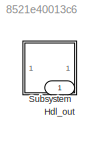
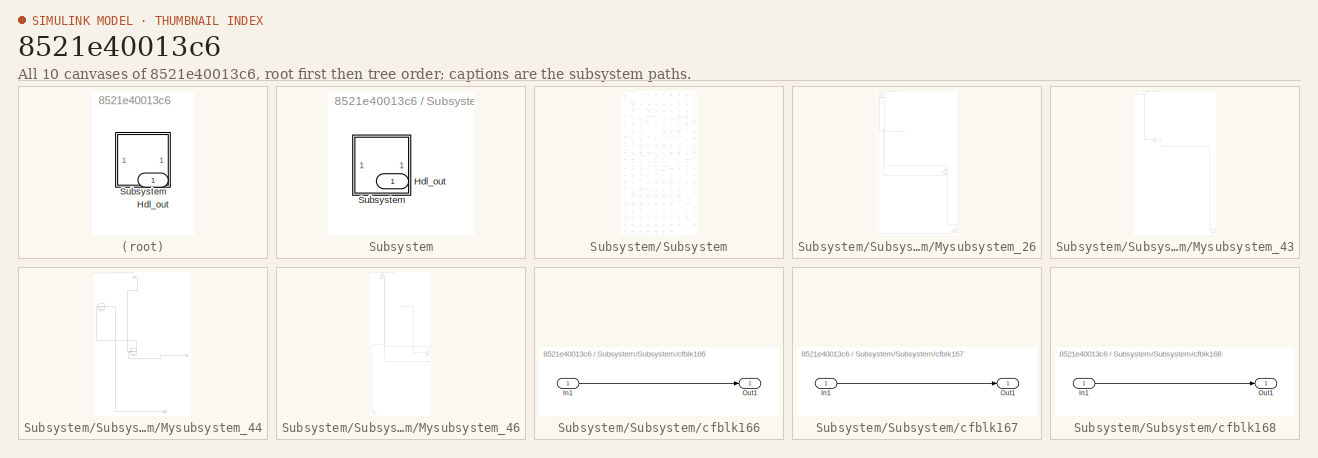
[diagram: thumbnail index - all 10 canvases of the model, root first then tree order]
MODEL slx_8521e40013c6
KIND model
CONFIG AbsTol = auto
CONFIG EnableMultiTasking = off
CONFIG FixedStep = auto
CONFIG MaxStep = auto
CONFIG MinStep = auto
CONFIG RelTol = 1e-3
CONFIG SampleTimeConstraint = Unconstrained
CONFIG SolverName = VariableStepAuto
CONFIG StartTime = 0.0
CONFIG StopTime = 10.0
BLOCK [Outport] Hdl_out
  OutDataTypeStr = uint8
BLOCK [SubSystem] Subsystem
BLOCK [Outport] Subsystem/Hdl_out
  OutDataTypeStr = uint8
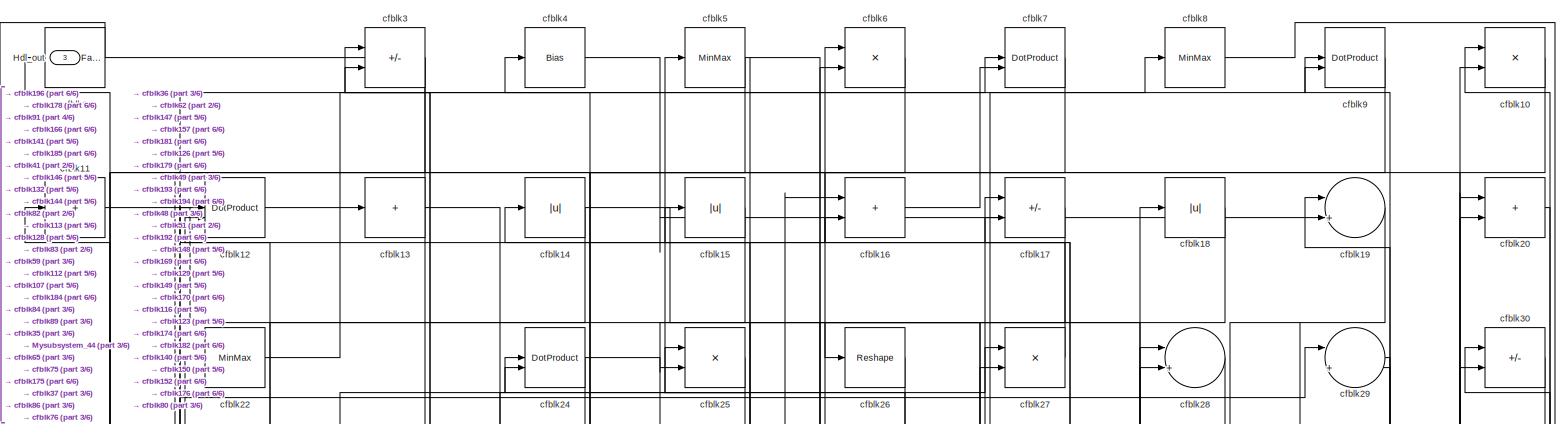
[diagram: Subsystem/Subsystem - part 1/6, full width, top band]
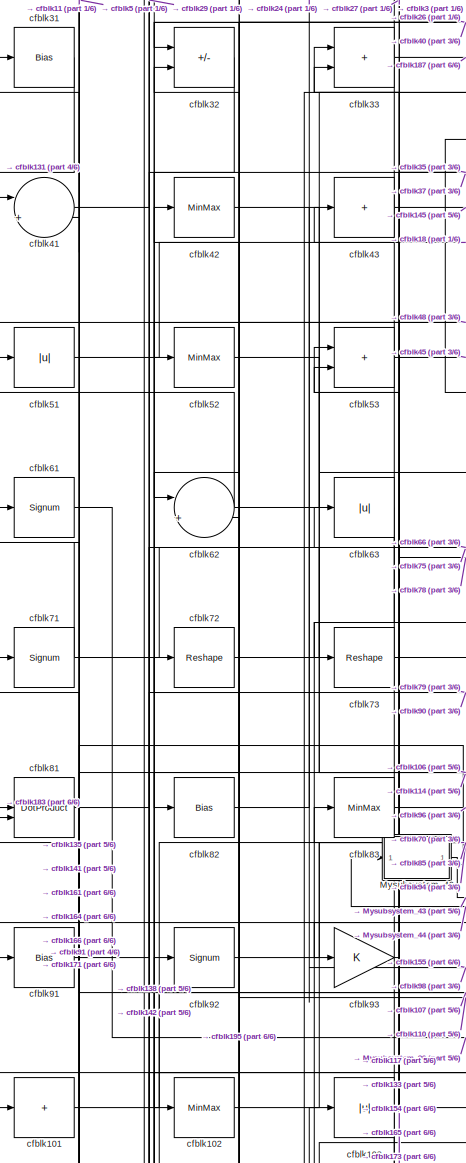
[diagram: Subsystem/Subsystem - part 2/6, middle left region]
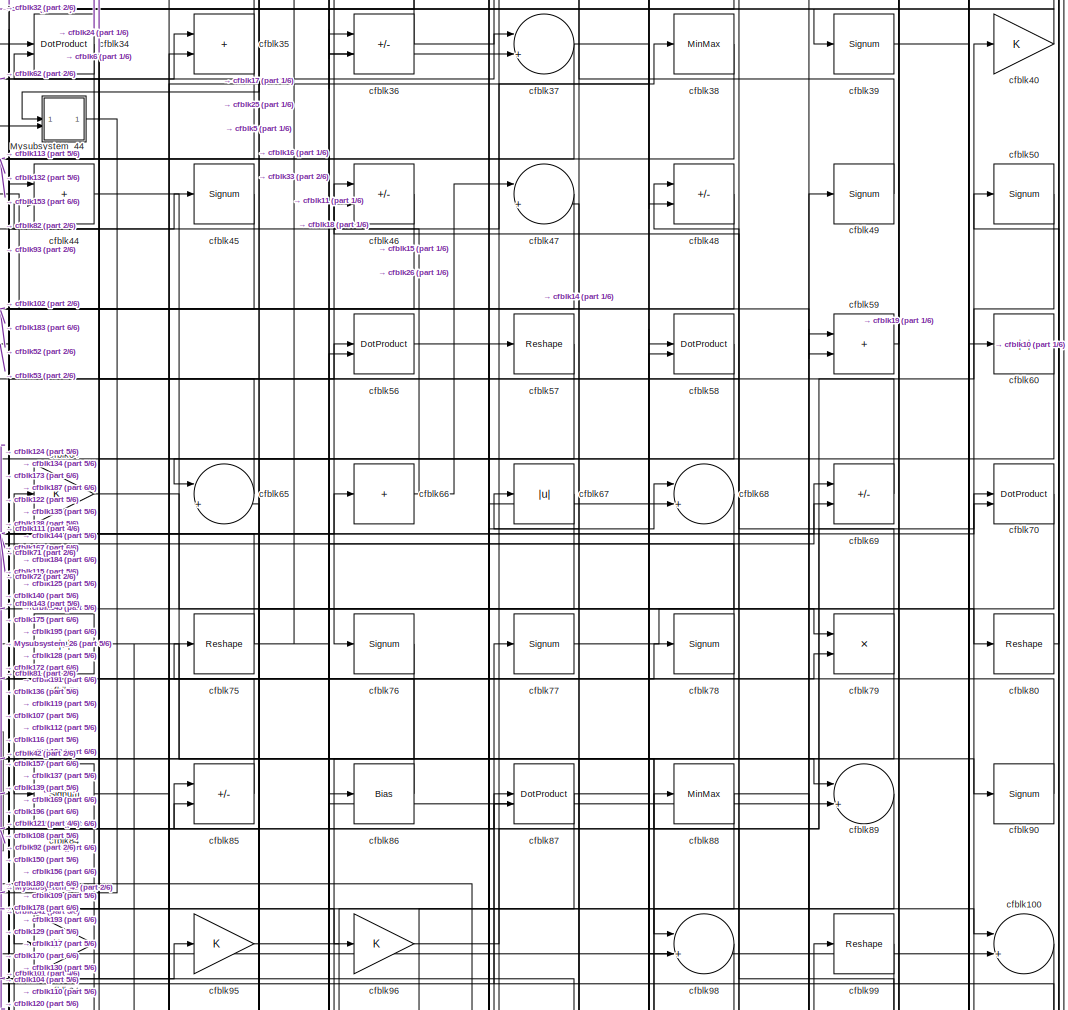
[diagram: Subsystem/Subsystem - part 3/6, top center region]
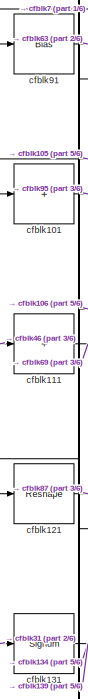
[diagram: Subsystem/Subsystem - part 4/6, middle left region]
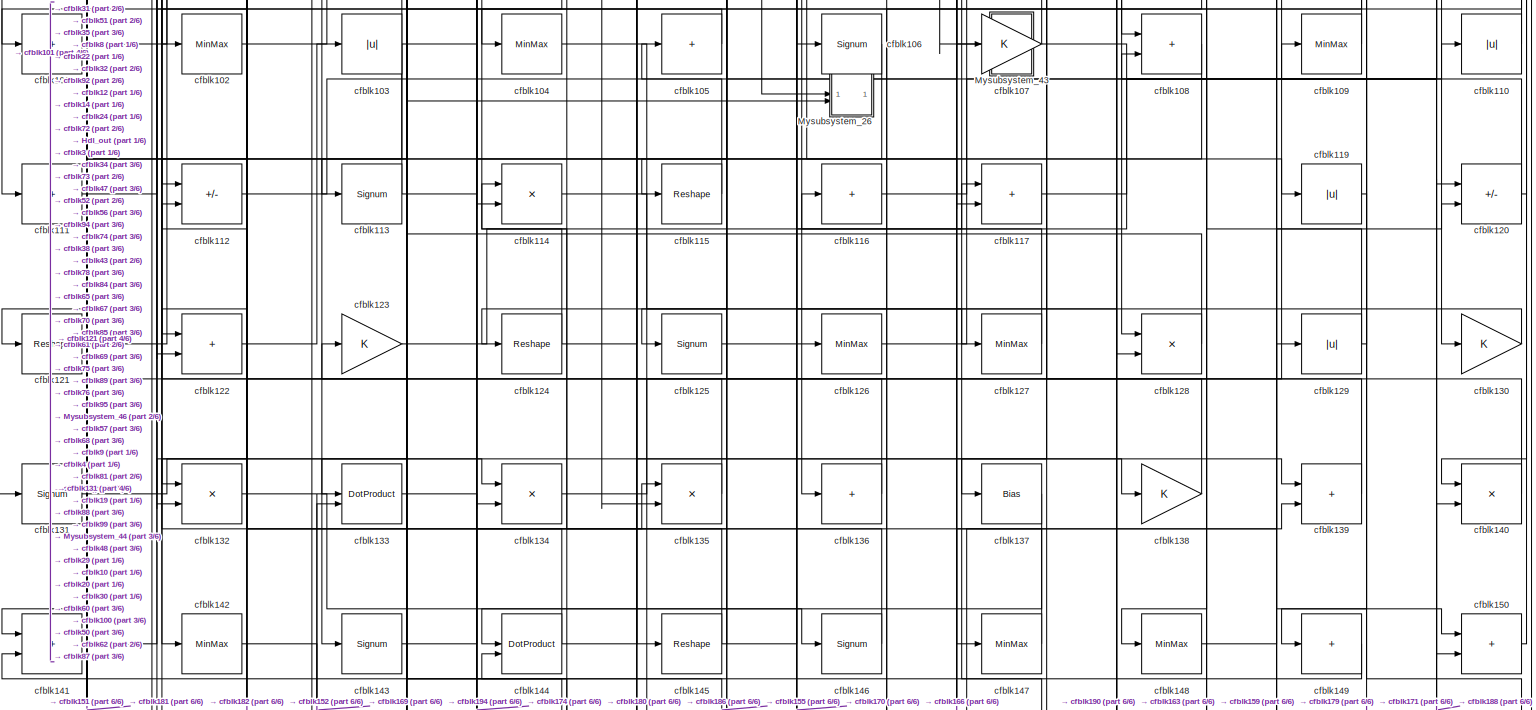
[diagram: Subsystem/Subsystem - part 5/6, full width, middle band]
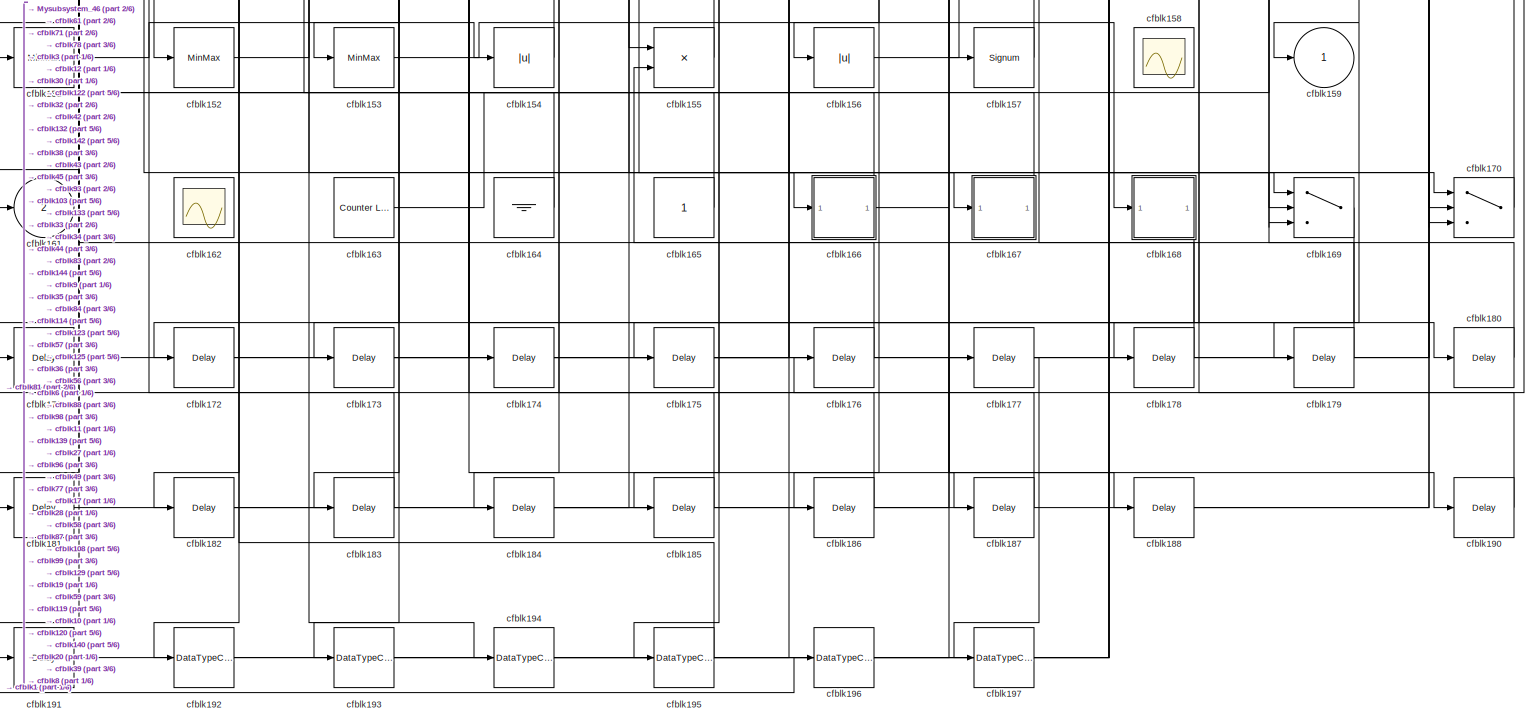
[diagram: Subsystem/Subsystem - part 6/6, full width, bottom band]
BLOCK [SubSystem] Subsystem/Subsystem
BLOCK [Outport] Subsystem/Subsystem/Hdl_out
  OutDataTypeStr = uint8
  Port = 3
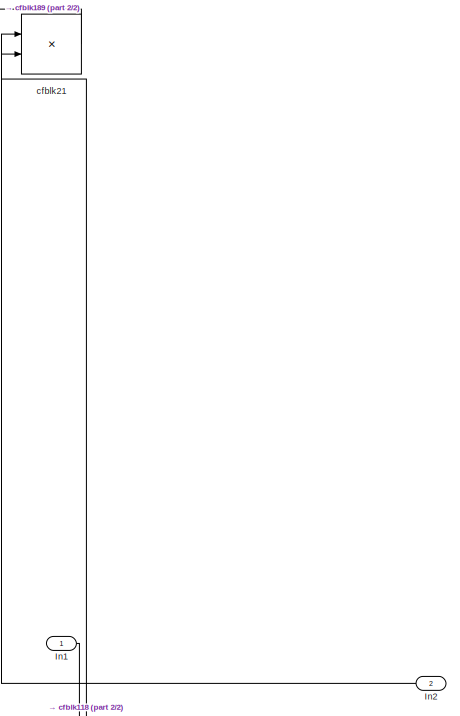
[diagram: Subsystem/Subsystem/Mysubsystem_26 - part 1/2, top left region]
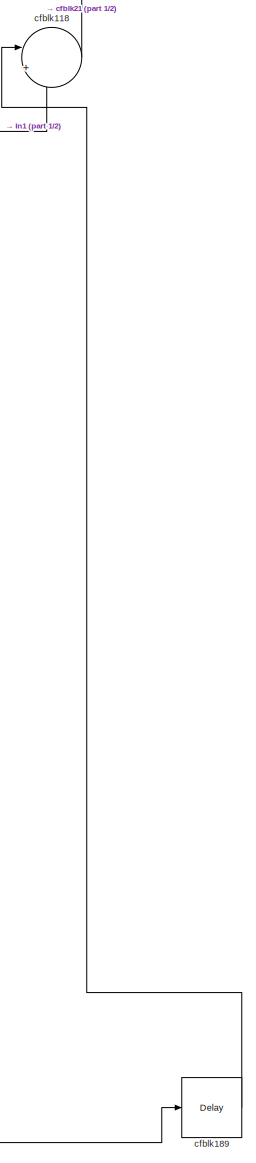
[diagram: Subsystem/Subsystem/Mysubsystem_26 - part 2/2, bottom right region]
BLOCK [SubSystem] Subsystem/Subsystem/Mysubsystem_26
  RTWFcnName = Mysubsystem_26
  RTWFcnNameOpts = User specified
  RTWFileNameOpts = Use function name
  RTWSystemCode = Reusable function
  TreatAsAtomicUnit = on
BLOCK [Inport] Subsystem/Subsystem/Mysubsystem_26/In1
BLOCK [Inport] Subsystem/Subsystem/Mysubsystem_26/In2
  Port = 2
BLOCK [Sum] Subsystem/Subsystem/Mysubsystem_26/cfblk118
  Inputs = |++
BLOCK [Delay] Subsystem/Subsystem/Mysubsystem_26/cfblk189
  InputPortMap = u0
  SampleTime = 1
BLOCK [Product] Subsystem/Subsystem/Mysubsystem_26/cfblk21
  Inputs = */
  RndMeth = Zero
  SaturateOnIntegerOverflow = on
BLOCK [SubSystem] Subsystem/Subsystem/Mysubsystem_43
  RTWFcnName = Mysubsystem_43
  RTWFcnNameOpts = User specified
  RTWFileNameOpts = Use function name
  RTWSystemCode = Reusable function
  TreatAsAtomicUnit = on
BLOCK [Inport] Subsystem/Subsystem/Mysubsystem_43/In1
BLOCK [Scope] Subsystem/Subsystem/Mysubsystem_43/cfblk160
  Floating = off
  NumInputPorts = 1
  ScopeSpecificationString = Simulink.scopes.TimeScopeBlockCfg('CurrentConfiguration', extmgr.ConfigurationSet(extmgr.Configuration('Core','General UI',true),extmgr.Configuration('Core','Source UI',true),extmgr.Configuration('Sources','WiredSimulink',true,'DataLoggingVariableName','ScopeData2','DataLoggingSaveFormat','Array','DataLoggingLimitDataPoints',true,'DataLoggingDecimation','1'),extmgr.Configuration('Visuals','Time Do...<+868ch>
BLOCK [Bias] Subsystem/Subsystem/Mysubsystem_43/cfblk54
  Bias = 0.0
  SaturateOnIntegerOverflow = off
BLOCK [SubSystem] Subsystem/Subsystem/Mysubsystem_44
  RTWFcnName = Mysubsystem_44
  RTWFcnNameOpts = User specified
  RTWFileNameOpts = Use function name
  RTWSystemCode = Reusable function
  TreatAsAtomicUnit = on
BLOCK [Inport] Subsystem/Subsystem/Mysubsystem_44/In1
BLOCK [Inport] Subsystem/Subsystem/Mysubsystem_44/In2
  Port = 2
BLOCK [Outport] Subsystem/Subsystem/Mysubsystem_44/Out1
BLOCK [Reshape] Subsystem/Subsystem/Mysubsystem_44/cfblk23
BLOCK [DotProduct] Subsystem/Subsystem/Mysubsystem_44/cfblk55
  OutDataTypeStr = Inherit: Inherit via internal rule
BLOCK [SubSystem] Subsystem/Subsystem/Mysubsystem_46
  RTWFcnName = Mysubsystem_46
  RTWFcnNameOpts = User specified
  RTWFileNameOpts = Use function name
  RTWSystemCode = Reusable function
  TreatAsAtomicUnit = on
BLOCK [Inport] Subsystem/Subsystem/Mysubsystem_46/In1
BLOCK [Outport] Subsystem/Subsystem/Mysubsystem_46/cfblk161
  Port = 2
  VectorParamsAs1DForOutWhenUnconnected = off
BLOCK [Reference] Subsystem/Subsystem/Mysubsystem_46/cfblk2  REF=hdlsllib/Logic and Bit
Operations/Bit Slice
  SourceBlock = hdlsllib/Logic and Bit\nOperations/Bit Slice
  SourceType = Bit Slice
BLOCK [Bias] Subsystem/Subsystem/Mysubsystem_46/cfblk97
  Bias = 0.0
  SaturateOnIntegerOverflow = off
BLOCK [Outport] Subsystem/Subsystem/Mysubsystem_46/y
BLOCK [Reference] Subsystem/Subsystem/cfblk1  REF=hdlsllib/Logic and Bit
Operations/Detect Fall
Nonpositive
  SourceBlock = hdlsllib/Logic and Bit\nOperations/Detect Fall\nNonpositive
  SourceType = Detect Fall Nonpositive
BLOCK [Product] Subsystem/Subsystem/cfblk10
  Inputs = */
  OutDataTypeStr = uint8
  RndMeth = Zero
  SaturateOnIntegerOverflow = on
BLOCK [Sum] Subsystem/Subsystem/cfblk100
  Inputs = |++
  OutDataTypeStr = uint8
BLOCK [Sum] Subsystem/Subsystem/cfblk101
  IconShape = rectangular
  Inputs = +
  OutDataTypeStr = uint8
BLOCK [MinMax] Subsystem/Subsystem/cfblk102
  OutDataTypeStr = uint8
BLOCK [Abs] Subsystem/Subsystem/cfblk103
  OutDataTypeStr = uint8
  SaturateOnIntegerOverflow = off
BLOCK [MinMax] Subsystem/Subsystem/cfblk104
  OutDataTypeStr = uint8
BLOCK [Sum] Subsystem/Subsystem/cfblk105
  IconShape = rectangular
  Inputs = +
  OutDataTypeStr = uint8
BLOCK [Signum] Subsystem/Subsystem/cfblk106
BLOCK [Gain] Subsystem/Subsystem/cfblk107
  OutDataTypeStr = uint8
BLOCK [Sum] Subsystem/Subsystem/cfblk108
  IconShape = rectangular
  OutDataTypeStr = uint8
BLOCK [MinMax] Subsystem/Subsystem/cfblk109
  OutDataTypeStr = uint8
BLOCK [Sum] Subsystem/Subsystem/cfblk11
  IconShape = rectangular
  Inputs = +
  OutDataTypeStr = uint8
BLOCK [Abs] Subsystem/Subsystem/cfblk110
  OutDataTypeStr = uint8
  SaturateOnIntegerOverflow = off
BLOCK [Sum] Subsystem/Subsystem/cfblk111
  IconShape = rectangular
  Inputs = +
  OutDataTypeStr = uint8
BLOCK [Sum] Subsystem/Subsystem/cfblk112
  IconShape = rectangular
  Inputs = +-
  OutDataTypeStr = uint8
BLOCK [Signum] Subsystem/Subsystem/cfblk113
BLOCK [Product] Subsystem/Subsystem/cfblk114
  Inputs = */
  OutDataTypeStr = uint8
  RndMeth = Zero
  SaturateOnIntegerOverflow = on
BLOCK [Reshape] Subsystem/Subsystem/cfblk115
BLOCK [Sum] Subsystem/Subsystem/cfblk116
  IconShape = rectangular
  Inputs = +
  OutDataTypeStr = uint8
BLOCK [Sum] Subsystem/Subsystem/cfblk117
  IconShape = rectangular
  OutDataTypeStr = uint8
BLOCK [Abs] Subsystem/Subsystem/cfblk119
  OutDataTypeStr = uint8
  SaturateOnIntegerOverflow = off
BLOCK [DotProduct] Subsystem/Subsystem/cfblk12
  OutDataTypeStr = uint8
BLOCK [Sum] Subsystem/Subsystem/cfblk120
  IconShape = rectangular
  Inputs = +-
  OutDataTypeStr = uint8
BLOCK [Reshape] Subsystem/Subsystem/cfblk121
BLOCK [Sum] Subsystem/Subsystem/cfblk122
  IconShape = rectangular
  OutDataTypeStr = uint8
BLOCK [Gain] Subsystem/Subsystem/cfblk123
  OutDataTypeStr = uint8
BLOCK [Reshape] Subsystem/Subsystem/cfblk124
BLOCK [Signum] Subsystem/Subsystem/cfblk125
BLOCK [MinMax] Subsystem/Subsystem/cfblk126
  OutDataTypeStr = uint8
BLOCK [MinMax] Subsystem/Subsystem/cfblk127
  OutDataTypeStr = uint8
BLOCK [Product] Subsystem/Subsystem/cfblk128
  Inputs = */
  OutDataTypeStr = uint8
  RndMeth = Zero
  SaturateOnIntegerOverflow = on
BLOCK [Abs] Subsystem/Subsystem/cfblk129
  OutDataTypeStr = uint8
  SaturateOnIntegerOverflow = off
BLOCK [Sum] Subsystem/Subsystem/cfblk13
  IconShape = rectangular
  Inputs = +
  OutDataTypeStr = uint8
BLOCK [Gain] Subsystem/Subsystem/cfblk130
  OutDataTypeStr = uint8
BLOCK [Signum] Subsystem/Subsystem/cfblk131
BLOCK [Product] Subsystem/Subsystem/cfblk132
  Inputs = */
  OutDataTypeStr = uint8
  RndMeth = Zero
  SaturateOnIntegerOverflow = on
BLOCK [DotProduct] Subsystem/Subsystem/cfblk133
  OutDataTypeStr = uint8
BLOCK [Product] Subsystem/Subsystem/cfblk134
  Inputs = */
  OutDataTypeStr = uint8
  RndMeth = Zero
  SaturateOnIntegerOverflow = on
BLOCK [Product] Subsystem/Subsystem/cfblk135
  Inputs = */
  OutDataTypeStr = uint8
  RndMeth = Zero
  SaturateOnIntegerOverflow = on
BLOCK [Sum] Subsystem/Subsystem/cfblk136
  IconShape = rectangular
  Inputs = +
  OutDataTypeStr = uint8
BLOCK [Bias] Subsystem/Subsystem/cfblk137
  Bias = 0.0
  SaturateOnIntegerOverflow = off
BLOCK [Gain] Subsystem/Subsystem/cfblk138
  OutDataTypeStr = uint8
BLOCK [Sum] Subsystem/Subsystem/cfblk139
  IconShape = rectangular
  OutDataTypeStr = uint8
BLOCK [Abs] Subsystem/Subsystem/cfblk14
  OutDataTypeStr = uint8
  SaturateOnIntegerOverflow = off
BLOCK [Product] Subsystem/Subsystem/cfblk140
  Inputs = */
  OutDataTypeStr = uint8
  RndMeth = Zero
  SaturateOnIntegerOverflow = on
BLOCK [Sum] Subsystem/Subsystem/cfblk141
  IconShape = rectangular
  OutDataTypeStr = uint8
BLOCK [MinMax] Subsystem/Subsystem/cfblk142
  OutDataTypeStr = uint8
BLOCK [Signum] Subsystem/Subsystem/cfblk143
BLOCK [DotProduct] Subsystem/Subsystem/cfblk144
  OutDataTypeStr = uint8
BLOCK [Reshape] Subsystem/Subsystem/cfblk145
BLOCK [Signum] Subsystem/Subsystem/cfblk146
BLOCK [MinMax] Subsystem/Subsystem/cfblk147
  OutDataTypeStr = uint8
BLOCK [MinMax] Subsystem/Subsystem/cfblk148
  OutDataTypeStr = uint8
BLOCK [Sum] Subsystem/Subsystem/cfblk149
  IconShape = rectangular
  Inputs = +
  OutDataTypeStr = uint8
BLOCK [Abs] Subsystem/Subsystem/cfblk15
  OutDataTypeStr = uint8
  SaturateOnIntegerOverflow = off
BLOCK [Sum] Subsystem/Subsystem/cfblk150
  IconShape = rectangular
  OutDataTypeStr = uint8
BLOCK [MinMax] Subsystem/Subsystem/cfblk151
  OutDataTypeStr = uint8
BLOCK [MinMax] Subsystem/Subsystem/cfblk152
  OutDataTypeStr = uint8
BLOCK [MinMax] Subsystem/Subsystem/cfblk153
  OutDataTypeStr = uint8
BLOCK [Abs] Subsystem/Subsystem/cfblk154
  OutDataTypeStr = uint8
  SaturateOnIntegerOverflow = off
BLOCK [Product] Subsystem/Subsystem/cfblk155
  Inputs = */
  OutDataTypeStr = uint8
  RndMeth = Zero
  SaturateOnIntegerOverflow = on
BLOCK [Abs] Subsystem/Subsystem/cfblk156
  OutDataTypeStr = uint8
  SaturateOnIntegerOverflow = off
BLOCK [Signum] Subsystem/Subsystem/cfblk157
BLOCK [Scope] Subsystem/Subsystem/cfblk158
  Floating = on
  NumInputPorts = 1
  ScopeSpecificationString = Simulink.scopes.TimeScopeBlockCfg('CurrentConfiguration', extmgr.ConfigurationSet(extmgr.Configuration('Core','General UI',true,'FigureColor',[0.156862745098039 0.156862745098039 0.156862745098039]),extmgr.Configuration('Core','Source UI',true),extmgr.Configuration('Sources','WiredSimulink',true,'DataLoggingVariableName','ScopeData1','DataLoggingSaveFormat','StructureWithTime','DataLoggingLimitDat...<+2713ch>
BLOCK [Outport] Subsystem/Subsystem/cfblk159
  OutDataTypeStr = uint8
  VectorParamsAs1DForOutWhenUnconnected = off
BLOCK [Sum] Subsystem/Subsystem/cfblk16
  IconShape = rectangular
  OutDataTypeStr = uint8
BLOCK [Outport] Subsystem/Subsystem/cfblk161
  OutDataTypeStr = uint8
  Port = 2
  VectorParamsAs1DForOutWhenUnconnected = off
BLOCK [Scope] Subsystem/Subsystem/cfblk162
  Floating = on
  NumInputPorts = 1
  ScopeSpecificationString = Simulink.scopes.TimeScopeBlockCfg('CurrentConfiguration', extmgr.ConfigurationSet(extmgr.Configuration('Core','General UI',true,'FigureColor',[0.156862745098039 0.156862745098039 0.156862745098039]),extmgr.Configuration('Core','Source UI',true),extmgr.Configuration('Sources','WiredSimulink',true,'DataLoggingVariableName','ScopeData2','DataLoggingSaveFormat','StructureWithTime','DataLoggingLimitDat...<+2713ch>
BLOCK [Reference] Subsystem/Subsystem/cfblk163  REF=hdlsllib/Sources/Counter
Limited
  SourceBlock = hdlsllib/Sources/Counter\nLimited
  SourceType = Counter Limited
BLOCK [Ground] Subsystem/Subsystem/cfblk164
BLOCK [Constant] Subsystem/Subsystem/cfblk165
  OutDataTypeStr = uint8
  SampleTime = -1
BLOCK [SubSystem] Subsystem/Subsystem/cfblk166
  LibrarySourceBlock = hdlsllib/Ports &\nSubsystems/Subsystem
BLOCK [Inport] Subsystem/Subsystem/cfblk166/In1
BLOCK [Outport] Subsystem/Subsystem/cfblk166/Out1
BLOCK [SubSystem] Subsystem/Subsystem/cfblk167
  LibrarySourceBlock = hdlsllib/Ports &\nSubsystems/Subsystem
BLOCK [Inport] Subsystem/Subsystem/cfblk167/In1
BLOCK [Outport] Subsystem/Subsystem/cfblk167/Out1
BLOCK [SubSystem] Subsystem/Subsystem/cfblk168
  LibrarySourceBlock = hdlsllib/Ports &\nSubsystems/Subsystem
BLOCK [Inport] Subsystem/Subsystem/cfblk168/In1
BLOCK [Outport] Subsystem/Subsystem/cfblk168/Out1
BLOCK [Switch] Subsystem/Subsystem/cfblk169
  InputSameDT = off
  OutDataTypeStr = uint8
  SaturateOnIntegerOverflow = off
BLOCK [Sum] Subsystem/Subsystem/cfblk17
  IconShape = rectangular
  Inputs = +-
  OutDataTypeStr = uint8
BLOCK [Switch] Subsystem/Subsystem/cfblk170
  InputSameDT = off
  OutDataTypeStr = uint8
  SaturateOnIntegerOverflow = off
BLOCK [Delay] Subsystem/Subsystem/cfblk171
  InputPortMap = u0
  SampleTime = 1
BLOCK [Delay] Subsystem/Subsystem/cfblk172
  InputPortMap = u0
  SampleTime = 1
BLOCK [Delay] Subsystem/Subsystem/cfblk173
  InputPortMap = u0
  SampleTime = 1
BLOCK [Delay] Subsystem/Subsystem/cfblk174
  InputPortMap = u0
  SampleTime = 1
BLOCK [Delay] Subsystem/Subsystem/cfblk175
  InputPortMap = u0
  SampleTime = 1
BLOCK [Delay] Subsystem/Subsystem/cfblk176
  InputPortMap = u0
  SampleTime = 1
BLOCK [Delay] Subsystem/Subsystem/cfblk177
  InputPortMap = u0
  SampleTime = 1
BLOCK [Delay] Subsystem/Subsystem/cfblk178
  InputPortMap = u0
  SampleTime = 1
BLOCK [Delay] Subsystem/Subsystem/cfblk179
  InputPortMap = u0
  SampleTime = 1
BLOCK [Abs] Subsystem/Subsystem/cfblk18
  OutDataTypeStr = uint8
  SaturateOnIntegerOverflow = off
BLOCK [Delay] Subsystem/Subsystem/cfblk180
  InputPortMap = u0
  SampleTime = 1
BLOCK [Delay] Subsystem/Subsystem/cfblk181
  InputPortMap = u0
  SampleTime = 1
BLOCK [Delay] Subsystem/Subsystem/cfblk182
  InputPortMap = u0
  SampleTime = 1
BLOCK [Delay] Subsystem/Subsystem/cfblk183
  InputPortMap = u0
  SampleTime = 1
BLOCK [Delay] Subsystem/Subsystem/cfblk184
  InputPortMap = u0
  SampleTime = 1
BLOCK [Delay] Subsystem/Subsystem/cfblk185
  InputPortMap = u0
  SampleTime = 1
BLOCK [Delay] Subsystem/Subsystem/cfblk186
  InputPortMap = u0
  SampleTime = 1
BLOCK [Delay] Subsystem/Subsystem/cfblk187
  InputPortMap = u0
  SampleTime = 1
BLOCK [Delay] Subsystem/Subsystem/cfblk188
  InputPortMap = u0
  SampleTime = 1
BLOCK [Sum] Subsystem/Subsystem/cfblk19
  Inputs = |++
  OutDataTypeStr = uint8
BLOCK [Delay] Subsystem/Subsystem/cfblk190
  InputPortMap = u0
  SampleTime = 1
BLOCK [Delay] Subsystem/Subsystem/cfblk191
  InputPortMap = u0
  SampleTime = 1
BLOCK [DataTypeConversion] Subsystem/Subsystem/cfblk192
  OutDataTypeStr = uint8
  RndMeth = Floor
  SaturateOnIntegerOverflow = off
BLOCK [DataTypeConversion] Subsystem/Subsystem/cfblk193
  OutDataTypeStr = uint8
  RndMeth = Floor
  SaturateOnIntegerOverflow = off
BLOCK [DataTypeConversion] Subsystem/Subsystem/cfblk194
  OutDataTypeStr = uint8
  RndMeth = Floor
  SaturateOnIntegerOverflow = off
BLOCK [DataTypeConversion] Subsystem/Subsystem/cfblk195
  OutDataTypeStr = uint8
  RndMeth = Floor
  SaturateOnIntegerOverflow = off
BLOCK [DataTypeConversion] Subsystem/Subsystem/cfblk196
  OutDataTypeStr = uint8
  RndMeth = Floor
  SaturateOnIntegerOverflow = off
BLOCK [DataTypeConversion] Subsystem/Subsystem/cfblk197
  OutDataTypeStr = uint8
  RndMeth = Floor
  SaturateOnIntegerOverflow = off
BLOCK [Sum] Subsystem/Subsystem/cfblk20
  IconShape = rectangular
  OutDataTypeStr = uint8
BLOCK [MinMax] Subsystem/Subsystem/cfblk22
  OutDataTypeStr = uint8
BLOCK [DotProduct] Subsystem/Subsystem/cfblk24
  OutDataTypeStr = uint8
BLOCK [Product] Subsystem/Subsystem/cfblk25
  Inputs = */
  OutDataTypeStr = uint8
  RndMeth = Zero
  SaturateOnIntegerOverflow = on
BLOCK [Reshape] Subsystem/Subsystem/cfblk26
BLOCK [Product] Subsystem/Subsystem/cfblk27
  Inputs = */
  OutDataTypeStr = uint8
  RndMeth = Zero
  SaturateOnIntegerOverflow = on
BLOCK [Sum] Subsystem/Subsystem/cfblk28
  Inputs = |++
  OutDataTypeStr = uint8
BLOCK [Sum] Subsystem/Subsystem/cfblk29
  Inputs = |++
  OutDataTypeStr = uint8
BLOCK [Sum] Subsystem/Subsystem/cfblk3
  IconShape = rectangular
  Inputs = +-
  OutDataTypeStr = uint8
BLOCK [Sum] Subsystem/Subsystem/cfblk30
  IconShape = rectangular
  Inputs = +-
  OutDataTypeStr = uint8
BLOCK [Bias] Subsystem/Subsystem/cfblk31
  Bias = 0.0
  SaturateOnIntegerOverflow = off
BLOCK [Sum] Subsystem/Subsystem/cfblk32
  IconShape = rectangular
  Inputs = +-
  OutDataTypeStr = uint8
BLOCK [Sum] Subsystem/Subsystem/cfblk33
  IconShape = rectangular
  OutDataTypeStr = uint8
BLOCK [DotProduct] Subsystem/Subsystem/cfblk34
  OutDataTypeStr = uint8
BLOCK [Sum] Subsystem/Subsystem/cfblk35
  IconShape = rectangular
  OutDataTypeStr = uint8
BLOCK [Sum] Subsystem/Subsystem/cfblk36
  IconShape = rectangular
  Inputs = +-
  OutDataTypeStr = uint8
BLOCK [Sum] Subsystem/Subsystem/cfblk37
  Inputs = |++
  OutDataTypeStr = uint8
BLOCK [MinMax] Subsystem/Subsystem/cfblk38
  OutDataTypeStr = uint8
BLOCK [Signum] Subsystem/Subsystem/cfblk39
BLOCK [Bias] Subsystem/Subsystem/cfblk4
  Bias = 0.0
  SaturateOnIntegerOverflow = off
BLOCK [Gain] Subsystem/Subsystem/cfblk40
  OutDataTypeStr = uint8
BLOCK [Sum] Subsystem/Subsystem/cfblk41
  Inputs = |++
  OutDataTypeStr = uint8
BLOCK [MinMax] Subsystem/Subsystem/cfblk42
  OutDataTypeStr = uint8
BLOCK [Sum] Subsystem/Subsystem/cfblk43
  IconShape = rectangular
  Inputs = +
  OutDataTypeStr = uint8
BLOCK [Sum] Subsystem/Subsystem/cfblk44
  IconShape = rectangular
  OutDataTypeStr = uint8
BLOCK [Signum] Subsystem/Subsystem/cfblk45
BLOCK [Sum] Subsystem/Subsystem/cfblk46
  IconShape = rectangular
  Inputs = +-
  OutDataTypeStr = uint8
BLOCK [Sum] Subsystem/Subsystem/cfblk47
  Inputs = |++
  OutDataTypeStr = uint8
BLOCK [Sum] Subsystem/Subsystem/cfblk48
  IconShape = rectangular
  Inputs = +-
  OutDataTypeStr = uint8
BLOCK [Signum] Subsystem/Subsystem/cfblk49
BLOCK [MinMax] Subsystem/Subsystem/cfblk5
  OutDataTypeStr = uint8
BLOCK [Signum] Subsystem/Subsystem/cfblk50
BLOCK [Abs] Subsystem/Subsystem/cfblk51
  OutDataTypeStr = uint8
  SaturateOnIntegerOverflow = off
BLOCK [MinMax] Subsystem/Subsystem/cfblk52
  OutDataTypeStr = uint8
BLOCK [Sum] Subsystem/Subsystem/cfblk53
  IconShape = rectangular
  OutDataTypeStr = uint8
BLOCK [DotProduct] Subsystem/Subsystem/cfblk56
  OutDataTypeStr = uint8
BLOCK [Reshape] Subsystem/Subsystem/cfblk57
BLOCK [DotProduct] Subsystem/Subsystem/cfblk58
  OutDataTypeStr = uint8
BLOCK [Sum] Subsystem/Subsystem/cfblk59
  IconShape = rectangular
  OutDataTypeStr = uint8
BLOCK [Product] Subsystem/Subsystem/cfblk6
  Inputs = */
  OutDataTypeStr = uint8
  RndMeth = Zero
  SaturateOnIntegerOverflow = on
BLOCK [Abs] Subsystem/Subsystem/cfblk60
  OutDataTypeStr = uint8
  SaturateOnIntegerOverflow = off
BLOCK [Signum] Subsystem/Subsystem/cfblk61
BLOCK [Sum] Subsystem/Subsystem/cfblk62
  Inputs = |++
  OutDataTypeStr = uint8
BLOCK [Abs] Subsystem/Subsystem/cfblk63
  OutDataTypeStr = uint8
  SaturateOnIntegerOverflow = off
BLOCK [Gain] Subsystem/Subsystem/cfblk64
  OutDataTypeStr = uint8
BLOCK [Sum] Subsystem/Subsystem/cfblk65
  Inputs = |++
  OutDataTypeStr = uint8
BLOCK [Sum] Subsystem/Subsystem/cfblk66
  IconShape = rectangular
  Inputs = +
  OutDataTypeStr = uint8
BLOCK [Abs] Subsystem/Subsystem/cfblk67
  OutDataTypeStr = uint8
  SaturateOnIntegerOverflow = off
BLOCK [Sum] Subsystem/Subsystem/cfblk68
  Inputs = |++
  OutDataTypeStr = uint8
BLOCK [Sum] Subsystem/Subsystem/cfblk69
  IconShape = rectangular
  Inputs = +-
  OutDataTypeStr = uint8
BLOCK [DotProduct] Subsystem/Subsystem/cfblk7
  OutDataTypeStr = uint8
BLOCK [DotProduct] Subsystem/Subsystem/cfblk70
  OutDataTypeStr = uint8
BLOCK [Signum] Subsystem/Subsystem/cfblk71
BLOCK [Reshape] Subsystem/Subsystem/cfblk72
BLOCK [Reshape] Subsystem/Subsystem/cfblk73
BLOCK [Abs] Subsystem/Subsystem/cfblk74
  OutDataTypeStr = uint8
  SaturateOnIntegerOverflow = off
BLOCK [Reshape] Subsystem/Subsystem/cfblk75
BLOCK [Signum] Subsystem/Subsystem/cfblk76
BLOCK [Signum] Subsystem/Subsystem/cfblk77
BLOCK [Signum] Subsystem/Subsystem/cfblk78
BLOCK [Product] Subsystem/Subsystem/cfblk79
  Inputs = */
  OutDataTypeStr = uint8
  RndMeth = Zero
  SaturateOnIntegerOverflow = on
BLOCK [MinMax] Subsystem/Subsystem/cfblk8
  OutDataTypeStr = uint8
BLOCK [Reshape] Subsystem/Subsystem/cfblk80
BLOCK [DotProduct] Subsystem/Subsystem/cfblk81
  OutDataTypeStr = uint8
BLOCK [Bias] Subsystem/Subsystem/cfblk82
  Bias = 0.0
  SaturateOnIntegerOverflow = off
BLOCK [MinMax] Subsystem/Subsystem/cfblk83
  OutDataTypeStr = uint8
BLOCK [Signum] Subsystem/Subsystem/cfblk84
BLOCK [Sum] Subsystem/Subsystem/cfblk85
  IconShape = rectangular
  Inputs = +-
  OutDataTypeStr = uint8
BLOCK [Bias] Subsystem/Subsystem/cfblk86
  Bias = 0.0
  SaturateOnIntegerOverflow = off
BLOCK [DotProduct] Subsystem/Subsystem/cfblk87
  OutDataTypeStr = uint8
BLOCK [MinMax] Subsystem/Subsystem/cfblk88
  OutDataTypeStr = uint8
BLOCK [Sum] Subsystem/Subsystem/cfblk89
  Inputs = |++
  OutDataTypeStr = uint8
BLOCK [DotProduct] Subsystem/Subsystem/cfblk9
  OutDataTypeStr = uint8
BLOCK [Signum] Subsystem/Subsystem/cfblk90
BLOCK [Bias] Subsystem/Subsystem/cfblk91
  Bias = 0.0
  SaturateOnIntegerOverflow = off
BLOCK [Signum] Subsystem/Subsystem/cfblk92
BLOCK [Gain] Subsystem/Subsystem/cfblk93
  OutDataTypeStr = uint8
BLOCK [Gain] Subsystem/Subsystem/cfblk94
  OutDataTypeStr = uint8
BLOCK [Gain] Subsystem/Subsystem/cfblk95
  OutDataTypeStr = uint8
BLOCK [Gain] Subsystem/Subsystem/cfblk96
  OutDataTypeStr = uint8
BLOCK [Sum] Subsystem/Subsystem/cfblk98
  Inputs = |++
  OutDataTypeStr = uint8
BLOCK [Reshape] Subsystem/Subsystem/cfblk99
LINE Subsystem/Subsystem/Mysubsystem_26/In1:1 -> Subsystem/Subsystem/Mysubsystem_26/cfblk118:2
LINE Subsystem/Subsystem/Mysubsystem_26/In2:1 -> Subsystem/Subsystem/Mysubsystem_26/cfblk21:2
LINE Subsystem/Subsystem/Mysubsystem_26/cfblk118:1 -> Subsystem/Subsystem/Mysubsystem_26/cfblk21:1
LINE Subsystem/Subsystem/Mysubsystem_26/cfblk189:1 -> Subsystem/Subsystem/Mysubsystem_26/cfblk118:1
LINE Subsystem/Subsystem/Mysubsystem_26/cfblk21:1 -> Subsystem/Subsystem/Mysubsystem_26/cfblk189:1
LINE Subsystem/Subsystem/Mysubsystem_43/In1:1 -> Subsystem/Subsystem/Mysubsystem_43/cfblk54:1
LINE Subsystem/Subsystem/Mysubsystem_43/cfblk54:1 -> Subsystem/Subsystem/Mysubsystem_43/cfblk160:1
LINE Subsystem/Subsystem/Mysubsystem_44/In1:1 -> Subsystem/Subsystem/Mysubsystem_44/cfblk55:1
LINE Subsystem/Subsystem/Mysubsystem_44/In2:1 -> Subsystem/Subsystem/Mysubsystem_44/cfblk55:2
LINE Subsystem/Subsystem/Mysubsystem_44/cfblk23:1 -> Subsystem/Subsystem/Mysubsystem_44/Out1:1
LINE Subsystem/Subsystem/Mysubsystem_44/cfblk55:1 -> Subsystem/Subsystem/Mysubsystem_44/cfblk23:1
LINE Subsystem/Subsystem/Mysubsystem_44:1 -> Subsystem/Subsystem/Mysubsystem_46:1
LINE Subsystem/Subsystem/Mysubsystem_46/In1:1 -> Subsystem/Subsystem/Mysubsystem_46/cfblk97:1
NET Subsystem/Subsystem/Mysubsystem_46/cfblk2:1 -> Subsystem/Subsystem/Mysubsystem_46/cfblk161:1, Subsystem/Subsystem/Mysubsystem_46/y:1
LINE Subsystem/Subsystem/Mysubsystem_46/cfblk97:1 -> Subsystem/Subsystem/Mysubsystem_46/cfblk2:1
LINE Subsystem/Subsystem/Mysubsystem_46:1 -> Subsystem/Subsystem/Mysubsystem_43:1
LINE Subsystem/Subsystem/Mysubsystem_46:2 -> Subsystem/Subsystem/cfblk161:1
LINE Subsystem/Subsystem/cfblk100:1 -> Subsystem/Subsystem/cfblk104:1
LINE Subsystem/Subsystem/cfblk101:1 -> Subsystem/Subsystem/cfblk95:1
LINE Subsystem/Subsystem/cfblk102:1 -> Subsystem/Subsystem/cfblk85:1
NET Subsystem/Subsystem/cfblk103:1 -> Subsystem/Subsystem/cfblk180:1, Subsystem/Subsystem/cfblk181:1
LINE Subsystem/Subsystem/cfblk104:1 -> Subsystem/Subsystem/cfblk127:1
LINE Subsystem/Subsystem/cfblk105:1 -> Subsystem/Subsystem/cfblk101:1
LINE Subsystem/Subsystem/cfblk106:1 -> Subsystem/Subsystem/cfblk121:1
NET Subsystem/Subsystem/cfblk107:1 -> Subsystem/Subsystem/cfblk110:1, Subsystem/Subsystem/cfblk4:1, Subsystem/Subsystem/cfblk81:2
LINE Subsystem/Subsystem/cfblk108:1 -> Subsystem/Subsystem/cfblk151:1
NET Subsystem/Subsystem/cfblk109:1 -> Subsystem/Subsystem/Mysubsystem_44:2, Subsystem/Subsystem/cfblk48:1
NET Subsystem/Subsystem/cfblk10:1 -> Subsystem/Subsystem/cfblk150:2, Subsystem/Subsystem/cfblk26:1
NET Subsystem/Subsystem/cfblk110:1 -> Subsystem/Subsystem/cfblk62:2, Subsystem/Subsystem/cfblk87:2
LINE Subsystem/Subsystem/cfblk111:1 -> Subsystem/Subsystem/cfblk69:1
LINE Subsystem/Subsystem/cfblk112:1 -> Subsystem/Subsystem/cfblk57:1
NET Subsystem/Subsystem/cfblk113:1 -> Subsystem/Subsystem/Hdl_out:1, Subsystem/Subsystem/cfblk56:1
LINE Subsystem/Subsystem/cfblk114:1 -> Subsystem/Subsystem/cfblk170:1
LINE Subsystem/Subsystem/cfblk115:1 -> Subsystem/Subsystem/cfblk105:1
NET Subsystem/Subsystem/cfblk116:1 -> Subsystem/Subsystem/cfblk30:2, Subsystem/Subsystem/cfblk68:2
LINE Subsystem/Subsystem/cfblk117:1 -> Subsystem/Subsystem/cfblk60:1
NET Subsystem/Subsystem/cfblk119:1 -> Subsystem/Subsystem/cfblk159:1, Subsystem/Subsystem/cfblk179:1
NET Subsystem/Subsystem/cfblk11:1 -> Subsystem/Subsystem/cfblk157:1, Subsystem/Subsystem/cfblk16:2, Subsystem/Subsystem/cfblk86:1
NET Subsystem/Subsystem/cfblk120:1 -> Subsystem/Subsystem/cfblk50:1, Subsystem/Subsystem/cfblk75:1
LINE Subsystem/Subsystem/cfblk121:1 -> Subsystem/Subsystem/cfblk87:1
NET Subsystem/Subsystem/cfblk122:1 -> Subsystem/Subsystem/cfblk103:1, Subsystem/Subsystem/cfblk182:1
LINE Subsystem/Subsystem/cfblk123:1 -> Subsystem/Subsystem/cfblk20:1
NET Subsystem/Subsystem/cfblk124:1 -> Subsystem/Subsystem/cfblk74:1, Subsystem/Subsystem/cfblk78:1
NET Subsystem/Subsystem/cfblk125:1 -> Subsystem/Subsystem/cfblk170:2, Subsystem/Subsystem/cfblk69:2
LINE Subsystem/Subsystem/cfblk126:1 -> Subsystem/Subsystem/cfblk9:1
LINE Subsystem/Subsystem/cfblk127:1 -> Subsystem/Subsystem/cfblk116:1
LINE Subsystem/Subsystem/cfblk128:1 -> Subsystem/Subsystem/cfblk3:1
NET Subsystem/Subsystem/cfblk129:1 -> Subsystem/Subsystem/cfblk29:2, Subsystem/Subsystem/cfblk88:1
LINE Subsystem/Subsystem/cfblk12:1 -> Subsystem/Subsystem/cfblk13:1
LINE Subsystem/Subsystem/cfblk130:1 -> Subsystem/Subsystem/cfblk124:1
NET Subsystem/Subsystem/cfblk131:1 -> Subsystem/Subsystem/cfblk134:1, Subsystem/Subsystem/cfblk139:1
NET Subsystem/Subsystem/cfblk132:1 -> Subsystem/Subsystem/cfblk146:1, Subsystem/Subsystem/cfblk194:1
LINE Subsystem/Subsystem/cfblk133:1 -> Subsystem/Subsystem/cfblk174:1
LINE Subsystem/Subsystem/cfblk134:1 -> Subsystem/Subsystem/cfblk99:1
LINE Subsystem/Subsystem/cfblk135:1 -> Subsystem/Subsystem/cfblk51:1
LINE Subsystem/Subsystem/cfblk136:1 -> Subsystem/Subsystem/cfblk112:2
LINE Subsystem/Subsystem/cfblk137:1 -> Subsystem/Subsystem/cfblk144:1
LINE Subsystem/Subsystem/cfblk138:1 -> Subsystem/Subsystem/cfblk92:1
NET Subsystem/Subsystem/cfblk139:1 -> Subsystem/Subsystem/cfblk47:2, Subsystem/Subsystem/cfblk67:1
LINE Subsystem/Subsystem/cfblk13:1 -> Subsystem/Subsystem/cfblk59:2
NET Subsystem/Subsystem/cfblk140:1 -> Subsystem/Subsystem/cfblk109:1, Subsystem/Subsystem/cfblk85:2
NET Subsystem/Subsystem/cfblk141:1 -> Subsystem/Subsystem/cfblk31:1, Subsystem/Subsystem/cfblk8:1
LINE Subsystem/Subsystem/cfblk142:1 -> Subsystem/Subsystem/cfblk169:1
LINE Subsystem/Subsystem/cfblk143:1 -> Subsystem/Subsystem/cfblk135:1
NET Subsystem/Subsystem/cfblk144:1 -> Subsystem/Subsystem/cfblk12:2, Subsystem/Subsystem/cfblk38:1
NET Subsystem/Subsystem/cfblk145:1 -> Subsystem/Subsystem/cfblk117:1, Subsystem/Subsystem/cfblk126:1, Subsystem/Subsystem/cfblk65:2, Subsystem/Subsystem/cfblk72:1, Subsystem/Subsystem/cfblk89:2
LINE Subsystem/Subsystem/cfblk146:1 -> Subsystem/Subsystem/cfblk22:1
LINE Subsystem/Subsystem/cfblk147:1 -> Subsystem/Subsystem/cfblk114:1
LINE Subsystem/Subsystem/cfblk148:1 -> Subsystem/Subsystem/cfblk120:2
LINE Subsystem/Subsystem/cfblk149:1 -> Subsystem/Subsystem/cfblk141:2
NET Subsystem/Subsystem/cfblk14:1 -> Subsystem/Subsystem/cfblk132:1, Subsystem/Subsystem/cfblk147:1, Subsystem/Subsystem/cfblk48:2
LINE Subsystem/Subsystem/cfblk150:1 -> Subsystem/Subsystem/cfblk30:1
LINE Subsystem/Subsystem/cfblk151:1 -> Subsystem/Subsystem/cfblk154:1
LINE Subsystem/Subsystem/cfblk152:1 -> Subsystem/Subsystem/cfblk133:2
LINE Subsystem/Subsystem/cfblk153:1 -> Subsystem/Subsystem/cfblk168:1
LINE Subsystem/Subsystem/cfblk154:1 -> Subsystem/Subsystem/cfblk83:1
LINE Subsystem/Subsystem/cfblk155:1 -> Subsystem/Subsystem/cfblk123:1
LINE Subsystem/Subsystem/cfblk156:1 -> Subsystem/Subsystem/cfblk49:1
LINE Subsystem/Subsystem/cfblk157:1 -> Subsystem/Subsystem/cfblk77:1
LINE Subsystem/Subsystem/cfblk15:1 -> Subsystem/Subsystem/cfblk25:2
LINE Subsystem/Subsystem/cfblk163:1 -> Subsystem/Subsystem/cfblk129:1
LINE Subsystem/Subsystem/cfblk164:1 -> Subsystem/Subsystem/cfblk71:1
NET Subsystem/Subsystem/cfblk165:1 -> Subsystem/Subsystem/cfblk32:2, Subsystem/Subsystem/cfblk43:1
LINE Subsystem/Subsystem/cfblk166/In1:1 -> Subsystem/Subsystem/cfblk166/Out1:1
NET Subsystem/Subsystem/cfblk166:1 -> Subsystem/Subsystem/cfblk139:2, Subsystem/Subsystem/cfblk188:1, Subsystem/Subsystem/cfblk61:1
LINE Subsystem/Subsystem/cfblk167/In1:1 -> Subsystem/Subsystem/cfblk167/Out1:1
LINE Subsystem/Subsystem/cfblk167:1 -> Subsystem/Subsystem/cfblk35:1
LINE Subsystem/Subsystem/cfblk168/In1:1 -> Subsystem/Subsystem/cfblk168/Out1:1
LINE Subsystem/Subsystem/cfblk168:1 -> Subsystem/Subsystem/cfblk172:1
LINE Subsystem/Subsystem/cfblk169:1 -> Subsystem/Subsystem/cfblk185:1
LINE Subsystem/Subsystem/cfblk16:1 -> Subsystem/Subsystem/cfblk7:2
LINE Subsystem/Subsystem/cfblk170:1 -> Subsystem/Subsystem/cfblk9:2
LINE Subsystem/Subsystem/cfblk171:1 -> Subsystem/Subsystem/cfblk140:2
LINE Subsystem/Subsystem/cfblk172:1 -> Subsystem/Subsystem/cfblk36:1
LINE Subsystem/Subsystem/cfblk173:1 -> Subsystem/Subsystem/cfblk34:1
LINE Subsystem/Subsystem/cfblk174:1 -> Subsystem/Subsystem/cfblk20:2
LINE Subsystem/Subsystem/cfblk175:1 -> Subsystem/Subsystem/cfblk6:2
LINE Subsystem/Subsystem/cfblk176:1 -> Subsystem/Subsystem/cfblk155:2
LINE Subsystem/Subsystem/cfblk177:1 -> Subsystem/Subsystem/cfblk197:1
LINE Subsystem/Subsystem/cfblk178:1 -> Subsystem/Subsystem/cfblk1:1
LINE Subsystem/Subsystem/cfblk179:1 -> Subsystem/Subsystem/cfblk17:2
LINE Subsystem/Subsystem/cfblk17:1 -> Subsystem/Subsystem/cfblk65:1
LINE Subsystem/Subsystem/cfblk180:1 -> Subsystem/Subsystem/cfblk59:1
LINE Subsystem/Subsystem/cfblk181:1 -> Subsystem/Subsystem/cfblk27:2
LINE Subsystem/Subsystem/cfblk182:1 -> Subsystem/Subsystem/cfblk10:2
LINE Subsystem/Subsystem/cfblk183:1 -> Subsystem/Subsystem/cfblk81:1
LINE Subsystem/Subsystem/cfblk184:1 -> Subsystem/Subsystem/cfblk35:2
LINE Subsystem/Subsystem/cfblk185:1 -> Subsystem/Subsystem/cfblk12:1
LINE Subsystem/Subsystem/cfblk186:1 -> Subsystem/Subsystem/cfblk144:2
LINE Subsystem/Subsystem/cfblk187:1 -> Subsystem/Subsystem/cfblk44:1
LINE Subsystem/Subsystem/cfblk188:1 -> Subsystem/Subsystem/cfblk120:1
LINE Subsystem/Subsystem/cfblk18:1 -> Subsystem/Subsystem/cfblk76:1
LINE Subsystem/Subsystem/cfblk190:1 -> Subsystem/Subsystem/cfblk108:2
LINE Subsystem/Subsystem/cfblk191:1 -> Subsystem/Subsystem/cfblk56:2
LINE Subsystem/Subsystem/cfblk192:1 -> Subsystem/Subsystem/cfblk177:1
LINE Subsystem/Subsystem/cfblk193:1 -> Subsystem/Subsystem/cfblk28:1
LINE Subsystem/Subsystem/cfblk194:1 -> Subsystem/Subsystem/cfblk28:2
LINE Subsystem/Subsystem/cfblk195:1 -> Subsystem/Subsystem/cfblk42:1
LINE Subsystem/Subsystem/cfblk196:1 -> Subsystem/Subsystem/cfblk58:1
LINE Subsystem/Subsystem/cfblk197:1 -> Subsystem/Subsystem/cfblk58:2
NET Subsystem/Subsystem/cfblk19:1 -> Subsystem/Subsystem/cfblk148:1, Subsystem/Subsystem/cfblk169:2
LINE Subsystem/Subsystem/cfblk1:1 -> Subsystem/Subsystem/cfblk196:1
LINE Subsystem/Subsystem/cfblk20:1 -> Subsystem/Subsystem/cfblk140:1
LINE Subsystem/Subsystem/cfblk22:1 -> Subsystem/Subsystem/cfblk7:1
NET Subsystem/Subsystem/cfblk24:1 -> Subsystem/Subsystem/cfblk112:1, Subsystem/Subsystem/cfblk89:1
LINE Subsystem/Subsystem/cfblk25:1 -> Subsystem/Subsystem/cfblk24:2
NET Subsystem/Subsystem/cfblk26:1 -> Subsystem/Subsystem/cfblk36:2, Subsystem/Subsystem/cfblk62:1
LINE Subsystem/Subsystem/cfblk27:1 -> Subsystem/Subsystem/cfblk6:1
LINE Subsystem/Subsystem/cfblk28:1 -> Subsystem/Subsystem/cfblk192:1
LINE Subsystem/Subsystem/cfblk29:1 -> Subsystem/Subsystem/cfblk149:1
LINE Subsystem/Subsystem/cfblk30:1 -> Subsystem/Subsystem/cfblk152:1
LINE Subsystem/Subsystem/cfblk31:1 -> Subsystem/Subsystem/cfblk131:1
LINE Subsystem/Subsystem/cfblk32:1 -> Subsystem/Subsystem/cfblk142:1
LINE Subsystem/Subsystem/cfblk33:1 -> Subsystem/Subsystem/cfblk187:1
LINE Subsystem/Subsystem/cfblk34:1 -> Subsystem/Subsystem/cfblk113:1
NET Subsystem/Subsystem/cfblk35:1 -> Subsystem/Subsystem/cfblk132:2, Subsystem/Subsystem/cfblk5:1, Subsystem/Subsystem/cfblk82:1
NET Subsystem/Subsystem/cfblk36:1 -> Subsystem/Subsystem/cfblk15:1, Subsystem/Subsystem/cfblk17:1
NET Subsystem/Subsystem/cfblk37:1 -> Subsystem/Subsystem/cfblk100:2, Subsystem/Subsystem/cfblk93:1
LINE Subsystem/Subsystem/cfblk38:1 -> Subsystem/Subsystem/cfblk153:1
LINE Subsystem/Subsystem/cfblk39:1 -> Subsystem/Subsystem/cfblk170:3
LINE Subsystem/Subsystem/cfblk3:1 -> Subsystem/Subsystem/cfblk166:1
NET Subsystem/Subsystem/cfblk40:1 -> Subsystem/Subsystem/cfblk32:1, Subsystem/Subsystem/cfblk39:1
LINE Subsystem/Subsystem/cfblk41:1 -> Subsystem/Subsystem/cfblk29:1
NET Subsystem/Subsystem/cfblk42:1 -> Subsystem/Subsystem/cfblk155:1, Subsystem/Subsystem/cfblk98:2
LINE Subsystem/Subsystem/cfblk43:1 -> Subsystem/Subsystem/cfblk145:1
LINE Subsystem/Subsystem/cfblk44:1 -> Subsystem/Subsystem/cfblk90:1
NET Subsystem/Subsystem/cfblk45:1 -> Subsystem/Subsystem/cfblk183:1, Subsystem/Subsystem/cfblk52:1
LINE Subsystem/Subsystem/cfblk46:1 -> Subsystem/Subsystem/cfblk111:1
LINE Subsystem/Subsystem/cfblk47:1 -> Subsystem/Subsystem/cfblk134:2
LINE Subsystem/Subsystem/cfblk48:1 -> Subsystem/Subsystem/cfblk102:1
LINE Subsystem/Subsystem/cfblk49:1 -> Subsystem/Subsystem/cfblk14:1
LINE Subsystem/Subsystem/cfblk4:1 -> Subsystem/Subsystem/cfblk19:2
LINE Subsystem/Subsystem/cfblk50:1 -> Subsystem/Subsystem/cfblk130:1
LINE Subsystem/Subsystem/cfblk51:1 -> Subsystem/Subsystem/cfblk18:1
NET Subsystem/Subsystem/cfblk52:1 -> Subsystem/Subsystem/cfblk106:1, Subsystem/Subsystem/cfblk114:2
LINE Subsystem/Subsystem/cfblk53:1 -> Subsystem/Subsystem/cfblk45:1
LINE Subsystem/Subsystem/cfblk56:1 -> Subsystem/Subsystem/cfblk107:1
LINE Subsystem/Subsystem/cfblk57:1 -> Subsystem/Subsystem/cfblk175:1
LINE Subsystem/Subsystem/cfblk58:1 -> Subsystem/Subsystem/cfblk195:1
LINE Subsystem/Subsystem/cfblk59:1 -> Subsystem/Subsystem/cfblk19:1
NET Subsystem/Subsystem/cfblk5:1 -> Subsystem/Subsystem/Mysubsystem_44:1, Subsystem/Subsystem/cfblk37:2, Subsystem/Subsystem/cfblk41:2
LINE Subsystem/Subsystem/cfblk60:1 -> Subsystem/Subsystem/cfblk94:1
LINE Subsystem/Subsystem/cfblk61:1 -> Subsystem/Subsystem/Mysubsystem_26:1
NET Subsystem/Subsystem/cfblk62:1 -> Subsystem/Subsystem/cfblk11:1, Subsystem/Subsystem/cfblk37:1
LINE Subsystem/Subsystem/cfblk63:1 -> Subsystem/Subsystem/cfblk73:1
LINE Subsystem/Subsystem/cfblk64:1 -> Subsystem/Subsystem/cfblk80:1
LINE Subsystem/Subsystem/cfblk65:1 -> Subsystem/Subsystem/cfblk34:2
NET Subsystem/Subsystem/cfblk66:1 -> Subsystem/Subsystem/cfblk46:1, Subsystem/Subsystem/cfblk47:1
LINE Subsystem/Subsystem/cfblk67:1 -> Subsystem/Subsystem/cfblk115:1
LINE Subsystem/Subsystem/cfblk68:1 -> Subsystem/Subsystem/cfblk143:1
LINE Subsystem/Subsystem/cfblk69:1 -> Subsystem/Subsystem/cfblk44:2
LINE Subsystem/Subsystem/cfblk6:1 -> Subsystem/Subsystem/cfblk84:1
LINE Subsystem/Subsystem/cfblk70:1 -> Subsystem/Subsystem/cfblk125:1
NET Subsystem/Subsystem/cfblk71:1 -> Subsystem/Subsystem/cfblk41:1, Subsystem/Subsystem/cfblk66:1
LINE Subsystem/Subsystem/cfblk72:1 -> Subsystem/Subsystem/cfblk70:1
NET Subsystem/Subsystem/cfblk73:1 -> Subsystem/Subsystem/cfblk117:2, Subsystem/Subsystem/cfblk133:1
NET Subsystem/Subsystem/cfblk74:1 -> Subsystem/Subsystem/cfblk108:1, Subsystem/Subsystem/cfblk135:2
NET Subsystem/Subsystem/cfblk75:1 -> Subsystem/Subsystem/Mysubsystem_26:2, Subsystem/Subsystem/cfblk128:2, Subsystem/Subsystem/cfblk16:1, Subsystem/Subsystem/cfblk33:2
LINE Subsystem/Subsystem/cfblk76:1 -> Subsystem/Subsystem/cfblk136:1
LINE Subsystem/Subsystem/cfblk77:1 -> Subsystem/Subsystem/cfblk79:1
NET Subsystem/Subsystem/cfblk78:1 -> Subsystem/Subsystem/cfblk128:1, Subsystem/Subsystem/cfblk191:1, Subsystem/Subsystem/cfblk53:1
NET Subsystem/Subsystem/cfblk79:1 -> Subsystem/Subsystem/cfblk137:1, Subsystem/Subsystem/cfblk46:2
LINE Subsystem/Subsystem/cfblk7:1 -> Subsystem/Subsystem/cfblk91:1
LINE Subsystem/Subsystem/cfblk80:1 -> Subsystem/Subsystem/cfblk10:1
NET Subsystem/Subsystem/cfblk81:1 -> Subsystem/Subsystem/cfblk171:1, Subsystem/Subsystem/cfblk79:2
LINE Subsystem/Subsystem/cfblk82:1 -> Subsystem/Subsystem/cfblk24:1
NET Subsystem/Subsystem/cfblk83:1 -> Subsystem/Subsystem/cfblk27:1, Subsystem/Subsystem/cfblk3:2, Subsystem/Subsystem/cfblk96:1
NET Subsystem/Subsystem/cfblk84:1 -> Subsystem/Subsystem/cfblk138:1, Subsystem/Subsystem/cfblk167:1
LINE Subsystem/Subsystem/cfblk85:1 -> Subsystem/Subsystem/cfblk64:1
LINE Subsystem/Subsystem/cfblk86:1 -> Subsystem/Subsystem/cfblk25:1
NET Subsystem/Subsystem/cfblk87:1 -> Subsystem/Subsystem/cfblk141:1, Subsystem/Subsystem/cfblk169:3
NET Subsystem/Subsystem/cfblk88:1 -> Subsystem/Subsystem/cfblk150:1, Subsystem/Subsystem/cfblk156:1
LINE Subsystem/Subsystem/cfblk89:1 -> Subsystem/Subsystem/cfblk98:1
LINE Subsystem/Subsystem/cfblk8:1 -> Subsystem/Subsystem/cfblk176:1
LINE Subsystem/Subsystem/cfblk90:1 -> Subsystem/Subsystem/cfblk33:1
LINE Subsystem/Subsystem/cfblk91:1 -> Subsystem/Subsystem/cfblk63:1
LINE Subsystem/Subsystem/cfblk92:1 -> Subsystem/Subsystem/cfblk70:2
LINE Subsystem/Subsystem/cfblk93:1 -> Subsystem/Subsystem/cfblk173:1
NET Subsystem/Subsystem/cfblk94:1 -> Subsystem/Subsystem/cfblk122:1, Subsystem/Subsystem/cfblk122:2, Subsystem/Subsystem/cfblk53:2
NET Subsystem/Subsystem/cfblk95:1 -> Subsystem/Subsystem/cfblk100:1, Subsystem/Subsystem/cfblk119:1
NET Subsystem/Subsystem/cfblk96:1 -> Subsystem/Subsystem/cfblk190:1, Subsystem/Subsystem/cfblk40:1, Subsystem/Subsystem/cfblk68:1
LINE Subsystem/Subsystem/cfblk98:1 -> Subsystem/Subsystem/cfblk186:1
NET Subsystem/Subsystem/cfblk99:1 -> Subsystem/Subsystem/cfblk178:1, Subsystem/Subsystem/cfblk193:1
LINE Subsystem/Subsystem/cfblk9:1 -> Subsystem/Subsystem/cfblk184:1
note: NET lines group one-source signal fan-out (src -> all destinations, sorted); 1:1 wires keep LINE
